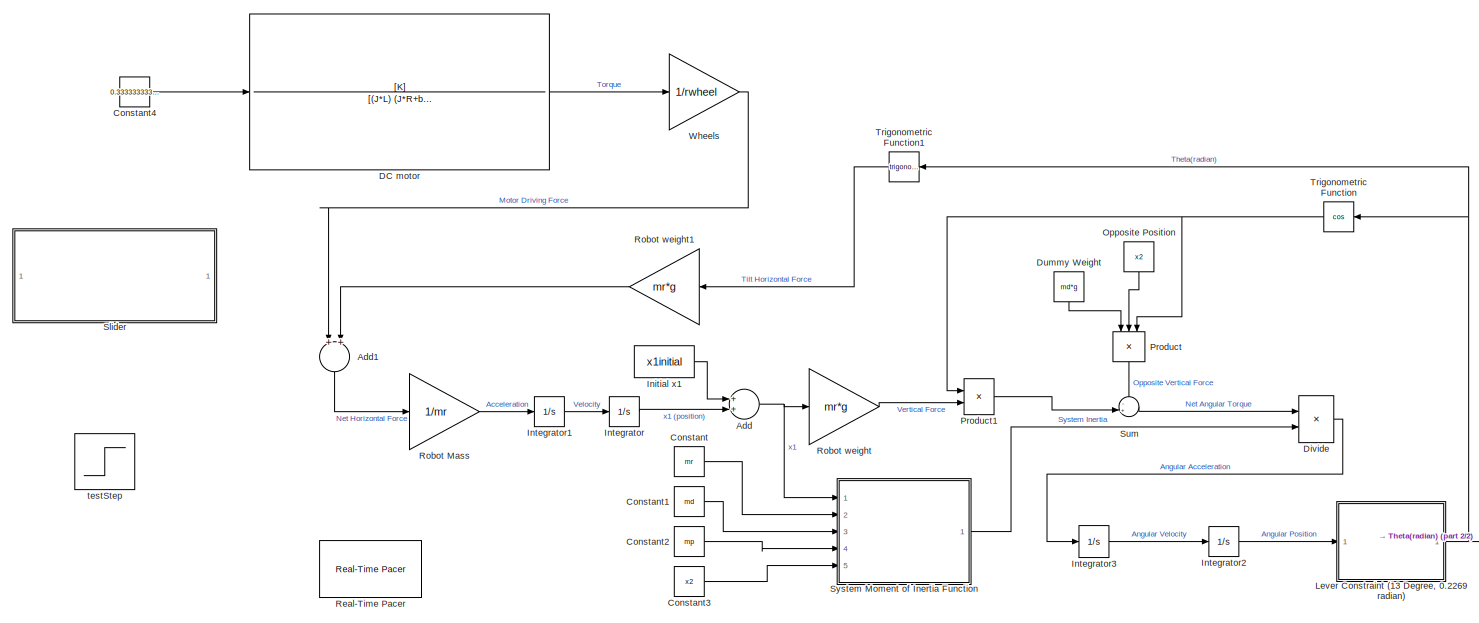
[diagram: root canvas - part 1/2, most of the canvas]
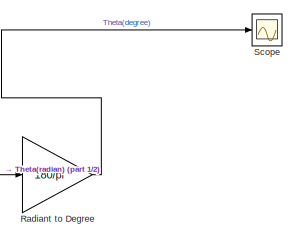
[diagram: root canvas - part 2/2, bottom right region]
MODEL slx_a2f32912c3da
KIND model
CONFIG AbsTol = auto
CONFIG EnableMultiTasking = on
CONFIG FixedStep = 0.01
CONFIG MaxStep = auto
CONFIG MinStep = auto
CONFIG RelTol = 1e-3
CONFIG SampleTimeConstraint = Unconstrained
CONFIG Solver = ode3
CONFIG SolverName = ode3
CONFIG StartTime = 0.0
CONFIG StopTime = Inf
BLOCK [Sum] Add
  InputSameDT = off
  OutDataTypeStr = Inherit: Inherit via internal rule
  Ports = [2, 1]
  SaturateOnIntegerOverflow = off
BLOCK [Sum] Add1
  InputSameDT = off
  OutDataTypeStr = Inherit: Inherit via internal rule
  Ports = [2, 1]
  SaturateOnIntegerOverflow = off
BLOCK [Constant] Constant
  Value = mr
BLOCK [Constant] Constant1
  Value = md
BLOCK [Constant] Constant2
  Value = mp
BLOCK [Constant] Constant3
  Value = x2
BLOCK [Constant] Constant4
  Value = 0.3333333333333
BLOCK [TransferFcn] DC motor
  Denominator = [(J*L) (J*R+b*L) (b*R+K*K)]
  Numerator = [K]
BLOCK [Product] Divide
  InputSameDT = off
  Inputs = */
  OutDataTypeStr = Inherit: Inherit via internal rule
  Ports = [2, 1]
  RndMeth = Floor
  SaturateOnIntegerOverflow = off
BLOCK [Constant] Dummy Weight
  Value = md*g
BLOCK [Constant] Initial x1
  Value = x1initial
BLOCK [Integrator] Integrator
  Ports = [1, 1]
BLOCK [Integrator] Integrator1
  Ports = [1, 1]
BLOCK [Integrator] Integrator2
  Ports = [1, 1]
BLOCK [Integrator] Integrator3
  Ports = [1, 1]
  UpperSaturationLimit = 100
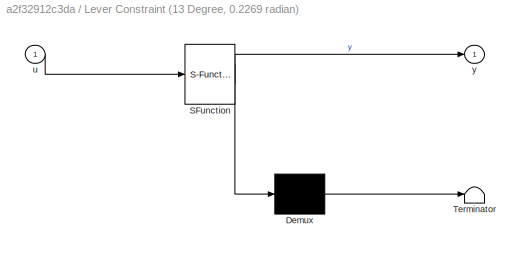
BLOCK [SubSystem] Lever Constraint (13 Degree, 0.2269 radian)
  ErrorFcn = Stateflow.Translate.translate
  PermitHierarchicalResolution = ExplicitOnly
  Ports = [1, 1]
  RequestExecContextInheritance = off
  SFBlockType = MATLAB Function
  TreatAsAtomicUnit = on
  Variant = off
BLOCK [Demux] Lever Constraint (13 Degree, 0.2269 radian)/ Demux 
  Outputs = 1
  Ports = [1, 1]
BLOCK [S-Function] Lever Constraint (13 Degree, 0.2269 radian)/ SFunction 
  EnableBusSupport = on
  FunctionName = sf_sfun
  PortCounts = [1 2]
  Ports = [1, 2]
  SFcnIsStateOwnerBlock = off
  SFunctionDeploymentMode = off
  Tag = Stateflow S-Function SeesawModelYeniRT 1
BLOCK [Terminator] Lever Constraint (13 Degree, 0.2269 radian)/ Terminator 
BLOCK [Inport] Lever Constraint (13 Degree, 0.2269 radian)/u
  IconDisplay = Port number
BLOCK [Outport] Lever Constraint (13 Degree, 0.2269 radian)/y
  IconDisplay = Port number
BLOCK [Constant] Opposite Position
  Value = x2
BLOCK [Product] Product
  InputSameDT = off
  Inputs = 3
  OutDataTypeStr = Inherit: Inherit via internal rule
  Ports = [3, 1]
  RndMeth = Floor
  SaturateOnIntegerOverflow = off
BLOCK [Product] Product1
  InputSameDT = off
  OutDataTypeStr = Inherit: Inherit via internal rule
  Ports = [2, 1]
  RndMeth = Floor
  SaturateOnIntegerOverflow = off
BLOCK [Gain] Radiant to Degree
  Gain = 180/pi
  OutDataTypeStr = Inherit: Inherit via internal rule
  ParamDataTypeStr = Inherit: Inherit via internal rule
  SaturateOnIntegerOverflow = off
BLOCK [Reference] Real-Time Pacer  REF=realtime_pacer_lib/Real-Time Pacer
  Ports = []
  SourceBlock = realtime_pacer_lib/Real-Time Pacer
  SourceType = RealTime_Pacer
BLOCK [Gain] Robot Mass
  Gain = 1/mr
  OutDataTypeStr = Inherit: Inherit via internal rule
  ParamDataTypeStr = Inherit: Inherit via internal rule
  SaturateOnIntegerOverflow = off
BLOCK [Gain] Robot weight
  Gain = mr*g
  OutDataTypeStr = Inherit: Inherit via internal rule
  ParamDataTypeStr = Inherit: Inherit via internal rule
  SaturateOnIntegerOverflow = off
BLOCK [Gain] Robot weight1
  Gain = mr*g
  OutDataTypeStr = Inherit: Inherit via internal rule
  ParamDataTypeStr = Inherit: Inherit via internal rule
  SaturateOnIntegerOverflow = off
BLOCK [Scope] Scope
  NumInputPorts = 1
  Ports = [1]
  ScopeSpecificationString = Simulink.scopes.TimeScopeBlockCfg('CurrentConfiguration', extmgr.ConfigurationSet(extmgr.Configuration('Core','General UI',true),extmgr.Configuration('Core','Source UI',true),extmgr.Configuration('Sources','WiredSimulink',true,'DataLoggingLimitDataPoints',true,'DataLoggingSaveFormat','Array','DataLoggingDecimation','1','DataLoggingDecimateData',true),extmgr.Configuration('Visuals','Time Domain',tr...<+1767ch>
BLOCK [SubSystem] Slider
  DialogController = hmiCreateDDGDialog
  IsWebBlock = on
  MaskHideContents = on
  Ports = []
  RequestExecContextInheritance = off
  Variant = off
BLOCK [Sum] Sum
  IconShape = round
  InputSameDT = off
  Inputs = -+|
  OutDataTypeStr = Inherit: Inherit via internal rule
  Ports = [2, 1]
  SaturateOnIntegerOverflow = off
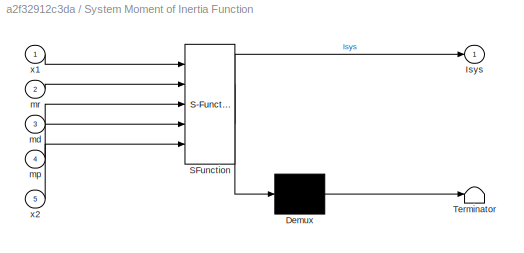
BLOCK [SubSystem] System Moment of Inertia Function
  ErrorFcn = Stateflow.Translate.translate
  PermitHierarchicalResolution = ExplicitOnly
  Ports = [5, 1]
  RequestExecContextInheritance = off
  SFBlockType = MATLAB Function
  TreatAsAtomicUnit = on
  Variant = off
BLOCK [Demux] System Moment of Inertia Function/ Demux 
  Outputs = 1
  Ports = [1, 1]
BLOCK [S-Function] System Moment of Inertia Function/ SFunction 
  EnableBusSupport = on
  FunctionName = sf_sfun
  PortCounts = [5 2]
  Ports = [5, 2]
  SFcnIsStateOwnerBlock = off
  SFunctionDeploymentMode = off
  Tag = Stateflow S-Function SeesawModelYeniRT 2
BLOCK [Terminator] System Moment of Inertia Function/ Terminator 
BLOCK [Outport] System Moment of Inertia Function/Isys
  IconDisplay = Port number
BLOCK [Inport] System Moment of Inertia Function/md
  IconDisplay = Port number
  Port = 3
BLOCK [Inport] System Moment of Inertia Function/mp
  IconDisplay = Port number
  Port = 4
BLOCK [Inport] System Moment of Inertia Function/mr
  IconDisplay = Port number
  Port = 2
BLOCK [Inport] System Moment of Inertia Function/x1
  IconDisplay = Port number
BLOCK [Inport] System Moment of Inertia Function/x2
  IconDisplay = Port number
  Port = 5
BLOCK [Trigonometry] Trigonometric Function
  Operator = cos
  Ports = [1, 1]
BLOCK [Trigonometry] Trigonometric Function1
  Ports = [1, 1]
BLOCK [Gain] Wheels
  Gain = 1/rwheel
  OutDataTypeStr = Inherit: Inherit via internal rule
  ParamDataTypeStr = Inherit: Inherit via internal rule
  SaturateOnIntegerOverflow = off
BLOCK [Step] testStep
  After = testStep
  SampleTime = 0
LINE Add1:1 -> Robot Mass:1
NET Add:1 -> Robot weight:1, System Moment of Inertia Function:1
LINE Constant1:1 -> System Moment of Inertia Function:3
LINE Constant2:1 -> System Moment of Inertia Function:4
LINE Constant3:1 -> System Moment of Inertia Function:5
LINE Constant4:1 -> DC motor:1
LINE Constant:1 -> System Moment of Inertia Function:2
LINE DC motor:1 -> Wheels:1
LINE Divide:1 -> Integrator3:1
LINE Dummy Weight:1 -> Product:1
LINE Initial x1:1 -> Add:1
LINE Integrator1:1 -> Integrator:1
LINE Integrator2:1 -> Lever Constraint (13 Degree, 0.2269 radian):1
LINE Integrator3:1 -> Integrator2:1
LINE Integrator:1 -> Add:2
NET Lever Constraint (13 Degree, 0.2269 radian):1 -> Radiant to Degree:1, Trigonometric Function1:1, Trigonometric Function:1
LINE Opposite Position:1 -> Product:2
LINE Product1:1 -> Sum:2
LINE Product:1 -> Sum:1
LINE Radiant to Degree:1 -> Scope:1
LINE Robot Mass:1 -> Integrator1:1
LINE Robot weight1:1 -> Add1:2
LINE Robot weight:1 -> Product1:2
LINE Sum:1 -> Divide:1
LINE System Moment of Inertia Function:1 -> Divide:2
LINE Trigonometric Function1:1 -> Robot weight1:1
NET Trigonometric Function:1 -> Product1:1, Product:3
LINE Wheels:1 -> Add1:1
note: NET lines group one-source signal fan-out (src -> all destinations, sorted); 1:1 wires keep LINE
CHART Lever Constraint (13 Degree, 0.2269 radian) states=1 transitions=1
  STATE_LABEL 'eML_blk_kernel()'
  STATE_LABEL 'SCRIPT:\nfunction y = leverConstraint(u)\nif u>=0.2269    %0.2269=13*(pi/180)\n    y=0.2269;\nelseif u<=-0.2269\n    y=-0.2269;\nelse\n    y=u;\nend'
CHART System Moment of Inertia Function states=1 transitions=1
  STATE_LABEL 'eML_blk_kernel()'
  STATE_LABEL 'SCRIPT:\nfunction Isys = Inertia(x1, mr, md, mp, x2)\nM=mr+md+mp;\nMmasses=mr+md;\nIsys=M*((Mmasses*((mr*x1+md*x2)/Mmasses))/M)^2;'
